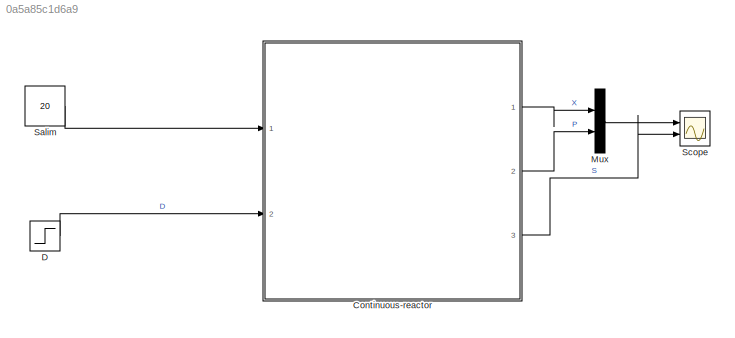
MODEL slx_0a5a85c1d6a9
KIND model
CONFIG AbsTol = auto
CONFIG EnableMultiTasking = off
CONFIG FixedStep = auto
CONFIG MaxStep = auto
CONFIG MinStep = auto
CONFIG RelTol = 1e-3
CONFIG SampleTimeConstraint = Unconstrained
CONFIG SolverName = daessc
CONFIG StartTime = 0.0
CONFIG StopTime = 100
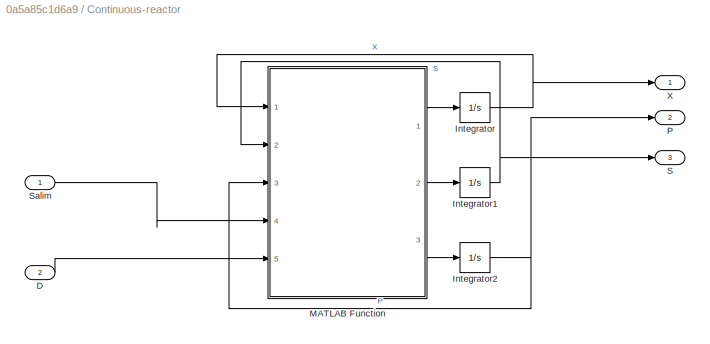
BLOCK [SubSystem] Continuous-reactor
  Ports = [2, 3]
  RequestExecContextInheritance = off
BLOCK [Inport] Continuous-reactor/D
  Port = 2
BLOCK [Integrator] Continuous-reactor/Integrator
  InitialCondition = 0.01
  Ports = [1, 1]
BLOCK [Integrator] Continuous-reactor/Integrator1
  InitialCondition = 20
  Ports = [1, 1]
BLOCK [Integrator] Continuous-reactor/Integrator2
  Ports = [1, 1]
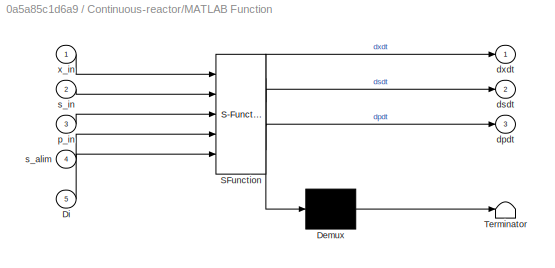
BLOCK [SubSystem] Continuous-reactor/MATLAB Function
  ErrorFcn = Stateflow.Translate.translate
  PermitHierarchicalResolution = ExplicitOnly
  Ports = [5, 3]
  RequestExecContextInheritance = off
  SFBlockType = MATLAB Function
  TreatAsAtomicUnit = on
BLOCK [Demux] Continuous-reactor/MATLAB Function/ Demux 
  Outputs = 1
  Ports = [1, 1]
BLOCK [S-Function] Continuous-reactor/MATLAB Function/ SFunction 
  EnableBusSupport = on
  FunctionName = sf_sfun
  PortCounts = [5 4]
  Ports = [5, 4]
  SFcnIsStateOwnerBlock = off
  SFunctionDeploymentMode = off
  Tag = Stateflow S-Function 2
BLOCK [Terminator] Continuous-reactor/MATLAB Function/ Terminator 
BLOCK [Inport] Continuous-reactor/MATLAB Function/Di
  Port = 5
BLOCK [Outport] Continuous-reactor/MATLAB Function/dpdt
  Port = 3
BLOCK [Outport] Continuous-reactor/MATLAB Function/dsdt
  Port = 2
BLOCK [Outport] Continuous-reactor/MATLAB Function/dxdt
BLOCK [Inport] Continuous-reactor/MATLAB Function/p_in
  Port = 3
BLOCK [Inport] Continuous-reactor/MATLAB Function/s_alim
  Port = 4
BLOCK [Inport] Continuous-reactor/MATLAB Function/s_in
  Port = 2
BLOCK [Inport] Continuous-reactor/MATLAB Function/x_in
BLOCK [Outport] Continuous-reactor/P
  Port = 2
BLOCK [Outport] Continuous-reactor/S
  Port = 3
BLOCK [Inport] Continuous-reactor/Salim
BLOCK [Outport] Continuous-reactor/X
BLOCK [Step] D
  After = 0.15
  SampleTime = 0
  Time = 5
BLOCK [Mux] Mux
  DisplayOption = bar
  Inputs = 2
  Ports = [2, 1]
BLOCK [Constant] Salim
  SampleTime = -1
  Value = 20
  VectorParams1D = off
BLOCK [Scope] Scope
  Floating = off
  NumInputPorts = 2
  Ports = [2]
  ScopeSpecificationString = Simulink.scopes.TimeScopeBlockCfg('CurrentConfiguration', extmgr.ConfigurationSet(extmgr.Configuration('Core','General UI',true),extmgr.Configuration('Core','Source UI',true),extmgr.Configuration('Sources','WiredSimulink',true,'DataLoggingVariableName','ScopeData1'),extmgr.Configuration('Visuals','Time Domain',true,'SerializedDisplays',{struct('MinYLimReal','-1.9986','MaxYLimReal','17.98738','YLab...<+2098ch>
LINE Continuous-reactor/D:1 -> Continuous-reactor/MATLAB Function:5
NET Continuous-reactor/Integrator1:1 -> Continuous-reactor/MATLAB Function:2, Continuous-reactor/S:1
NET Continuous-reactor/Integrator2:1 -> Continuous-reactor/MATLAB Function:3, Continuous-reactor/P:1
NET Continuous-reactor/Integrator:1 -> Continuous-reactor/MATLAB Function:1, Continuous-reactor/X:1
LINE Continuous-reactor/MATLAB Function:1 -> Continuous-reactor/Integrator:1
LINE Continuous-reactor/MATLAB Function:2 -> Continuous-reactor/Integrator1:1
LINE Continuous-reactor/MATLAB Function:3 -> Continuous-reactor/Integrator2:1
LINE Continuous-reactor/Salim:1 -> Continuous-reactor/MATLAB Function:4
LINE Continuous-reactor:1 -> Mux:1
LINE Continuous-reactor:2 -> Mux:2
LINE Continuous-reactor:3 -> Scope:2
LINE D:1 -> Continuous-reactor:2
LINE Mux:1 -> Scope:1
LINE Salim:1 -> Continuous-reactor:1
note: NET lines group one-source signal fan-out (src -> all destinations, sorted); 1:1 wires keep LINE
CHART Continuous-reactor/MATLAB Function states=1 transitions=1
  STATE_LABEL 'eML_blk_kernel()'
  STATE_LABEL 'SCRIPT:\nfunction [dxdt, dsdt,dpdt] =Bio_Continuous(x_in,s_in,p_in,s_alim,Di)\n\n%Definir Parámetros\numax=0.75;%h^-1Velocidad de crecimiento máximo\nKs=0.08; %Afininidad por el sustrato\nSmax=30; %Sustrato máximo que inhibie el crecimiento\nYxs=0.8;% (gX/gS) rendimiento de biomasa en sustrato\nms=0.00001; %constante de mantenimiento\nalfa=0.05; %constante asociada al crecimiento\nbeta=0.002; %constante no ...<+256ch>'
CHART  states=0 transitions=0
